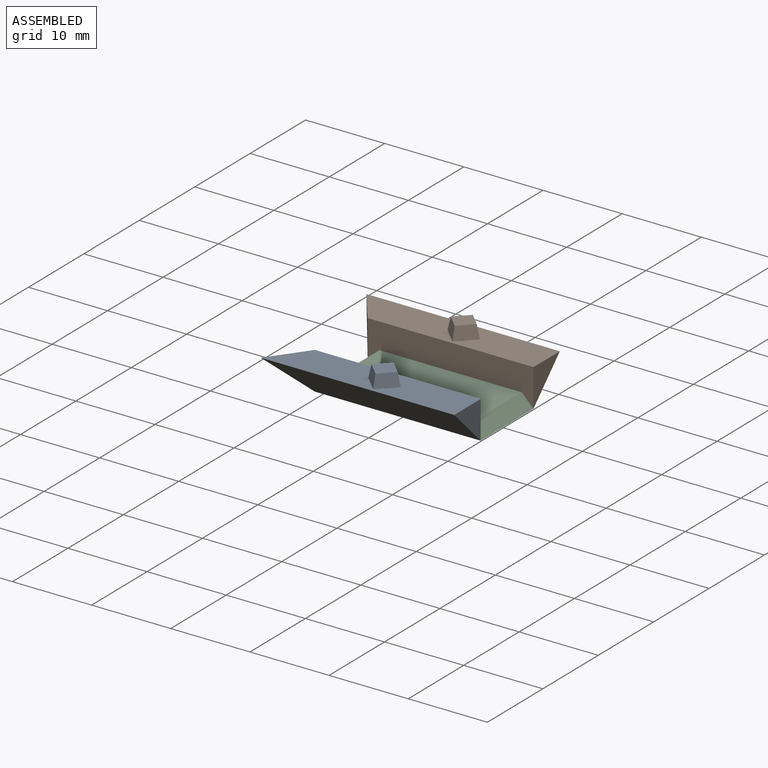
[diagram: assembled view]
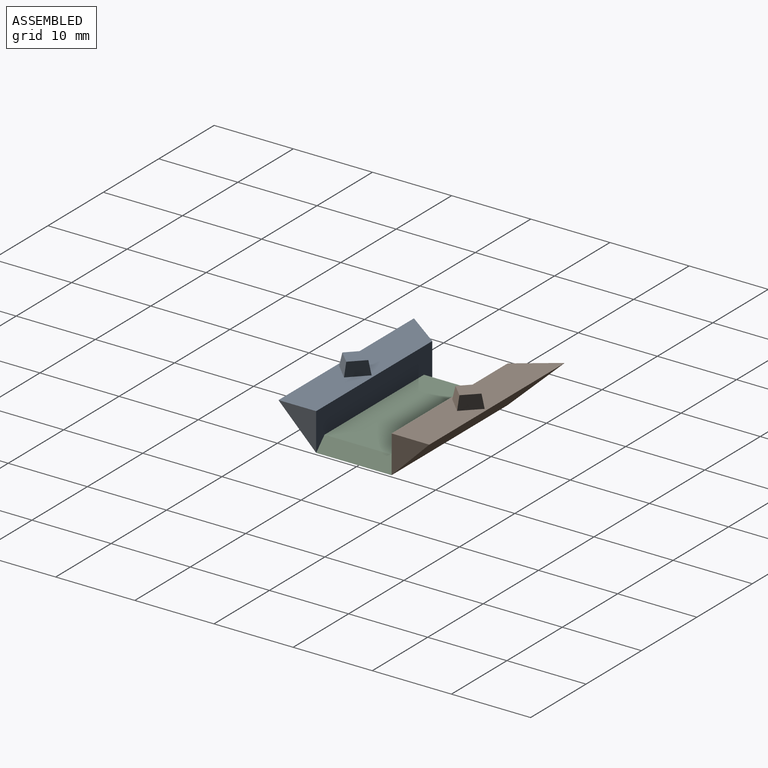
[diagram: assembled view, second angle]
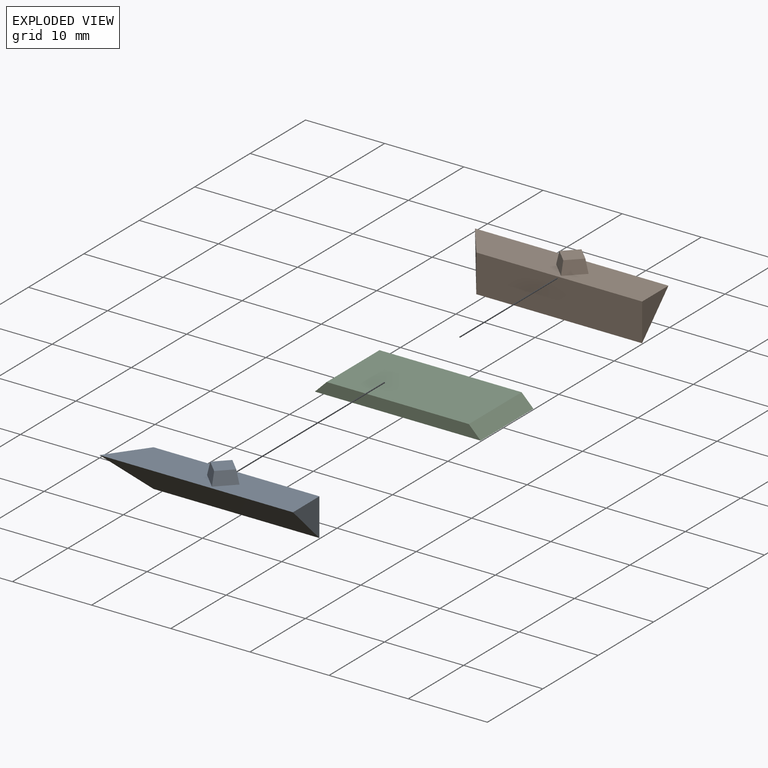
[diagram: exploded view]
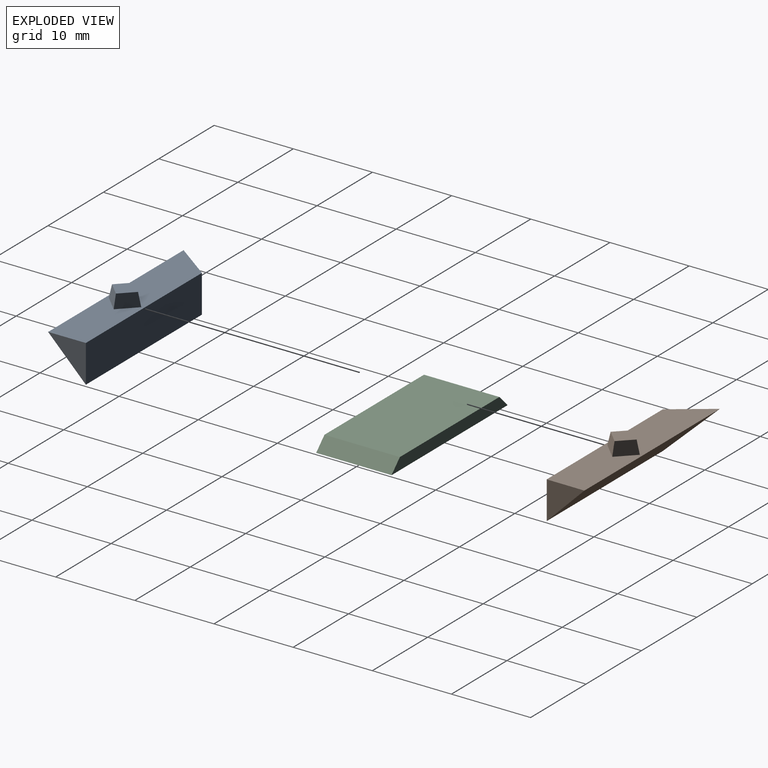
[diagram: exploded view, second angle]
ASSEMBLY  parts=3 mates=2
PART A: 10 faces, bbox 7.4x24.4x4 mm
  f0: plane 24.44x3.37mm, normal (-0.71,0,0.71), area 99.7mm2, adj f1,f2,f3,f4,f5,f6,f7,f8
  f1: plane 24.44x6.73mm, normal (0,0,-1), area 152.7mm2, adj f0,f2,f3,f4
  f2: plane 20.95x3.37mm, normal (0.71,0,0.71), area 99.8mm2, adj f0,f1,f3,f4
  f3: plane 6.73x3.37mm, normal (0,-1,0), area 11.3mm2, adj f0,f1,f2
  f4: plane 6.73x3.49mm, normal (0.42,0.81,0.42), area 14.1mm2, adj f0,f1,f2
  f5: plane 2.6x2.32mm, normal (0.37,0.7,0.62), area 4.3mm2, adj f0,f6,f8,f9
  f6: plane 2.6x2.32mm, normal (-0.61,0.7,-0.37), area 4.3mm2, adj f0,f5,f7,f9
  f7: plane 2.6x2.32mm, normal (-0.61,-0.7,-0.37), area 4.3mm2, adj f0,f6,f8,f9
  f8: plane 2.6x2.32mm, normal (0.37,-0.7,0.62), area 4.3mm2, adj f0,f5,f7,f9
  f9: plane 3.28x2.32mm, normal (-0.71,0,0.71), area 5.4mm2, adj f5,f6,f7,f8
PART B: 10 faces, bbox 7.4x24.4x4 mm
  f0: plane 20.95x3.37mm, normal (-0.71,0,0.71), area 99.8mm2, adj f1,f2,f3,f4
  f1: plane 24.44x6.73mm, normal (0,0,-1), area 152.7mm2, adj f0,f2,f3,f4
  f2: plane 24.44x3.37mm, normal (0.71,0,0.71), area 99.7mm2, adj f0,f1,f3,f4,f5,f6,f7,f8
  f3: plane 6.73x3.37mm, normal (0,-1,0), area 11.3mm2, adj f0,f1,f2
  f4: plane 6.73x3.49mm, normal (-0.42,0.81,0.42), area 14.1mm2, adj f0,f1,f2
  f5: plane 2.6x2.32mm, normal (-0.37,-0.7,0.62), area 4.3mm2, adj f2,f6,f8,f9
  f6: plane 2.6x2.32mm, normal (0.61,-0.7,-0.37), area 4.3mm2, adj f2,f5,f7,f9
  f7: plane 2.6x2.32mm, normal (0.61,0.7,-0.37), area 4.3mm2, adj f2,f6,f8,f9
  f8: plane 2.6x2.32mm, normal (-0.37,0.7,0.62), area 4.3mm2, adj f2,f5,f7,f9
  f9: plane 3.28x2.32mm, normal (0.71,0,0.71), area 5.4mm2, adj f5,f6,f7,f8
PART C: 6 faces, bbox 20.9x9.5x1.5 mm
  f0: plane 20.95x1.49mm, normal (0,1,0), area 29.1mm2, adj f2,f3,f4,f5
  f1: plane 20.95x1.49mm, normal (0,-1,0), area 29.1mm2, adj f2,f3,f4,f5
  f2: plane 17.96x9.53mm, normal (0,0,1), area 171mm2, adj f0,f1,f4,f5
  f3: plane 20.95x9.53mm, normal (0,0,-1), area 199.5mm2, adj f0,f1,f4,f5
  f4: plane 9.53x1.49mm, normal (-0.71,0,0.71), area 20.1mm2, adj f0,f1,f2,f3
  f5: plane 9.53x1.49mm, normal (0.71,0,0.71), area 20.1mm2, adj f0,f1,f2,f3
PLACE A rot(axis=(-0.36,0.36,0.86),98.4deg) t=(10.47,-9.52,4.75)mm
PLACE B rot(axis=(0.36,-0.36,0.86),98.4deg) t=(10.47,4.76,0)mm
PLACE C at identity fixed
MATE fastened B.f0 <-> C.f0  axis (0,-1,0) through (0,4.76,0)mm
MATE fastened A.f2 <-> C.f1  axis (0,1,0) through (0,-4.76,0)mm
